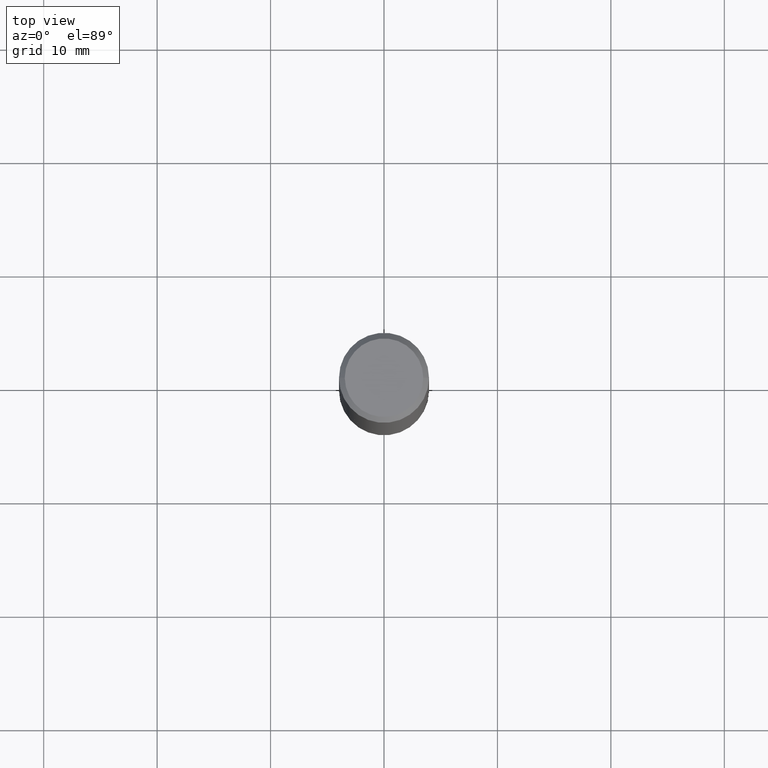
[diagram: clean part render]
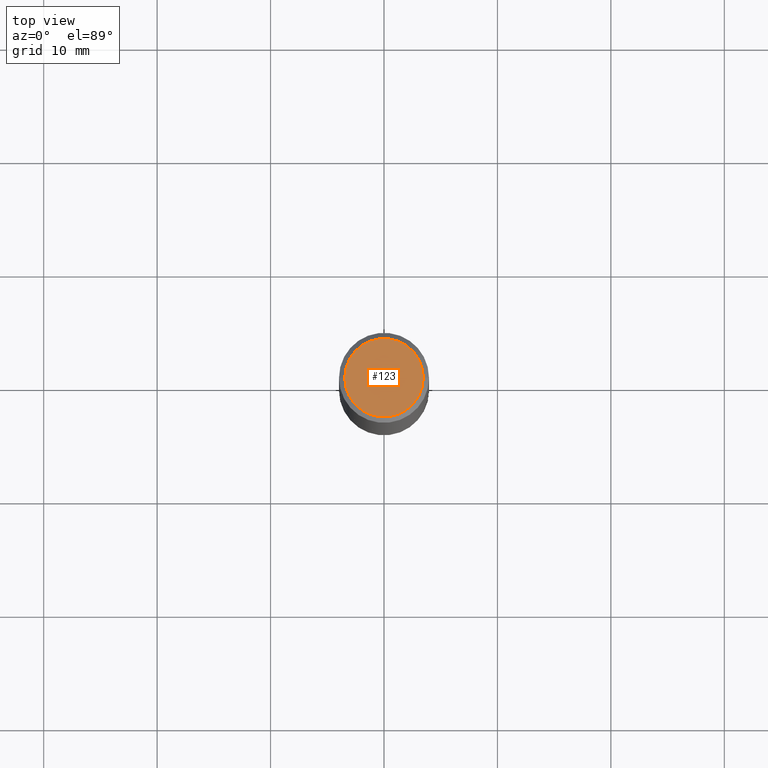
[diagram: same view with one face highlighted and labeled with its STEP entity id]
A machine part, top view. The second image highlights one B-rep face of the part: STEP entity #123.
In plain terms, the highlighted planar face has unit normal (0, -0, -1).
Its self-contained STEP definition (entity closure, byte-faithful):
#10 = CARTESIAN_POINT ( 'NONE',  ( 0.000000000000000000, 0.000000000000000000, 0.000000000000000000 ) ) ;
#48 = VERTEX_POINT ( 'NONE', #165 ) ;
#54 = CARTESIAN_POINT ( 'NONE',  ( 0.1362499999999998157, -1.038262645562516744E-15, 6.957025900226686667E-30 ) ) ;
#75 = EDGE_LOOP ( 'NONE', ( #236, #98 ) ) ;
#98 = ORIENTED_EDGE ( 'NONE', *, *, #204, .T. ) ;
#111 = CARTESIAN_POINT ( 'NONE',  ( 0.000000000000000000, 0.000000000000000000, 0.000000000000000000 ) ) ;
#123 = ADVANCED_FACE ( 'NONE', ( #314 ), #304, .F. ) ;
#125 = DIRECTION ( 'NONE',  ( -2.445468806185136597E-29, 3.491481338843145583E-15, 1.000000000000000000 ) ) ;
#144 = AXIS2_PLACEMENT_3D ( 'NONE', #10, #125, #154 ) ;
#145 = DIRECTION ( 'NONE',  ( 2.438088387897960049E-29, -3.491481338843145188E-15, -1.000000000000000000 ) ) ;
#149 = CIRCLE ( 'NONE', #144, 0.1362499999999998157 ) ;
#154 = DIRECTION ( 'NONE',  ( 1.000000000000000000, -6.982962677686266711E-15, 4.876176775795935232E-29 ) ) ;
#161 = VERTEX_POINT ( 'NONE', #54 ) ;
#165 = CARTESIAN_POINT ( 'NONE',  ( -0.1362499999999998157, 9.863434782231836346E-16, -6.775751096333130074E-30 ) ) ;
#204 = EDGE_CURVE ( 'NONE', #161, #48, #149, .T. ) ;
#206 = CIRCLE ( 'NONE', #306, 0.1362499999999998157 ) ;
#215 = AXIS2_PLACEMENT_3D ( 'NONE', #220, #145, #341 ) ;
#220 = CARTESIAN_POINT ( 'NONE',  ( 9.514286648347523799E-16, 0.1362499999999998157, -4.757143324173778663E-16 ) ) ;
#224 = DIRECTION ( 'NONE',  ( -2.445468806185136597E-29, 3.491481338843145583E-15, 1.000000000000000000 ) ) ;
#236 = ORIENTED_EDGE ( 'NONE', *, *, #289, .T. ) ;
#289 = EDGE_CURVE ( 'NONE', #48, #161, #206, .T. ) ;
#304 = PLANE ( 'NONE',  #215 ) ;
#306 = AXIS2_PLACEMENT_3D ( 'NONE', #111, #224, #337 ) ;
#314 = FACE_OUTER_BOUND ( 'NONE', #75, .T. ) ;
#337 = DIRECTION ( 'NONE',  ( 1.000000000000000000, -6.982962677686266711E-15, 4.876176775795935232E-29 ) ) ;
#341 = DIRECTION ( 'NONE',  ( -1.000000000000000000, 6.982962677686265922E-15, -4.876176775795935793E-29 ) ) ;